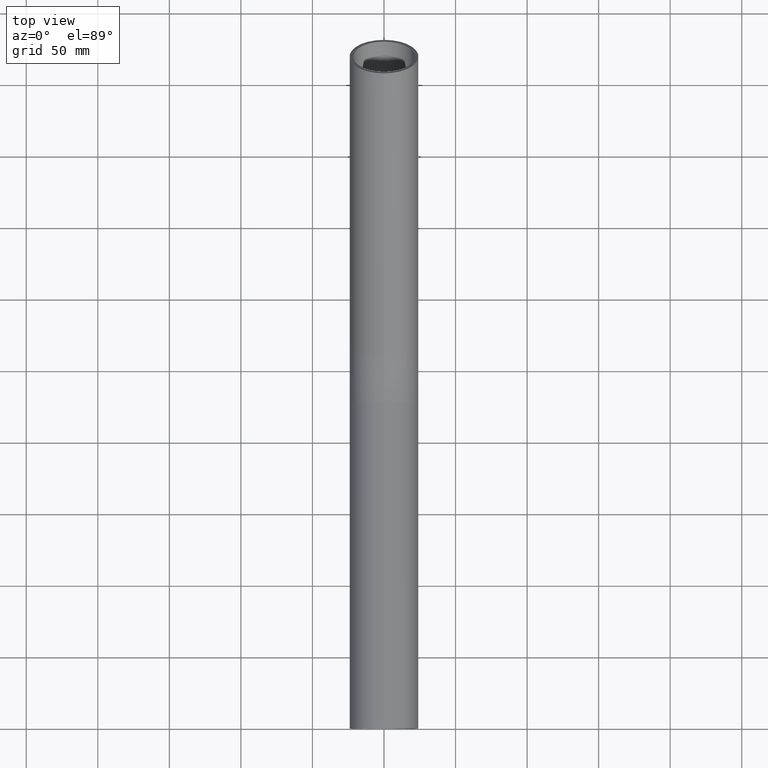
[diagram: clean part render]
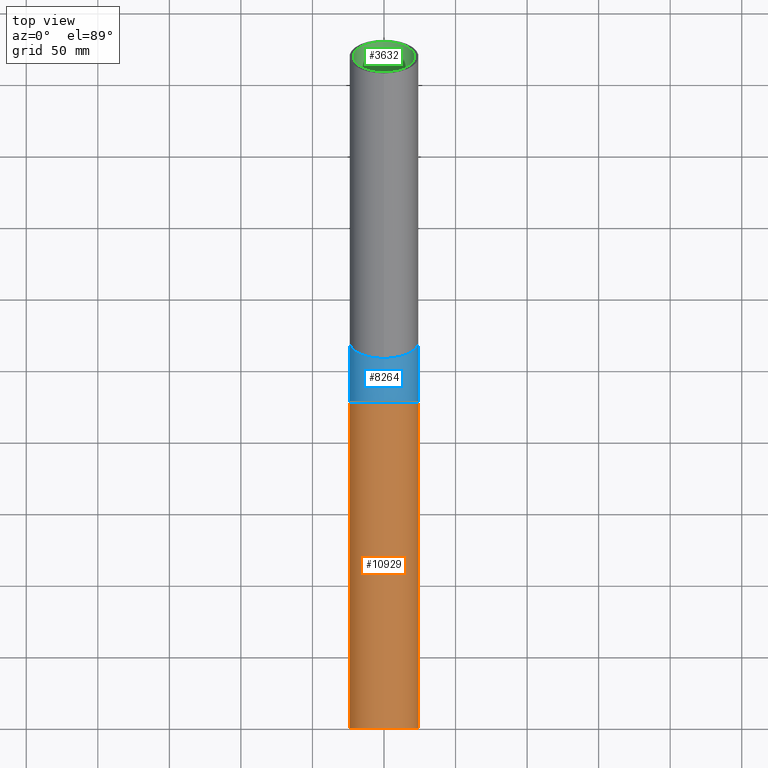
[diagram: same view with three faces highlighted in distinct colors, each labeled with its STEP entity id]
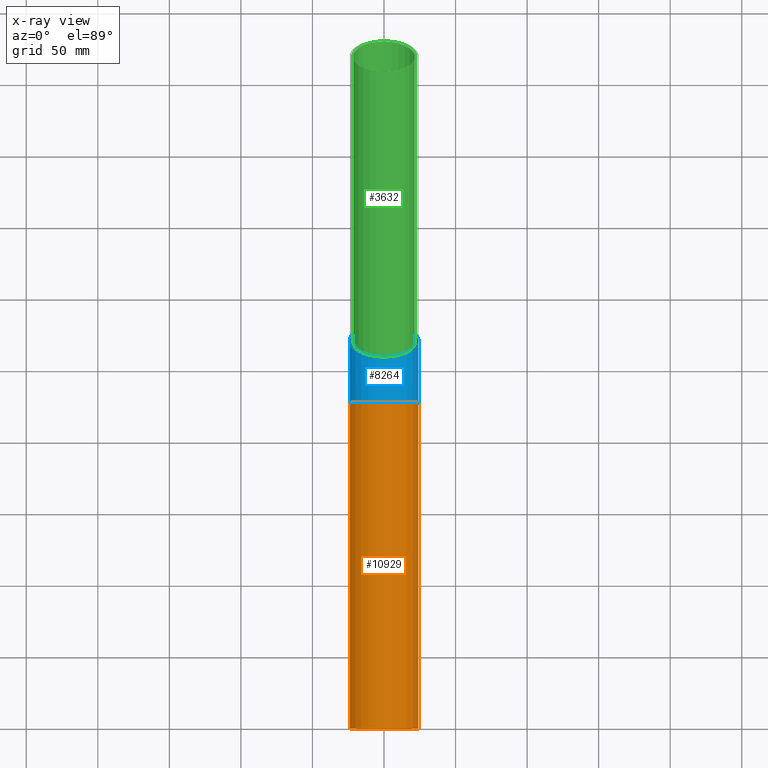
[diagram: x-ray of the same camera — body ghosted, the three highlighted faces saturated]
A machine part, top view with three faces highlighted in distinct colors.
The next image is the same camera in x-ray (body ghosted, the three faces saturated) — at least one of them is partly hidden behind the body in this view.
Their STEP definitions:

[orange] entity #10929 — the highlighted cylindrical surface (bore or boss wall) has radius 24.15 mm, axis along (-0, -1, 0).
#147 = DIRECTION ( 'NONE',  ( 0.000000000000000000, 0.000000000000000000, 1.000000000000000000 ) ) ;
#458 = CYLINDRICAL_SURFACE ( 'NONE', #8810, 24.15000000000000568 ) ;
#979 = EDGE_LOOP ( 'NONE', ( #8436 ) ) ;
#1240 = EDGE_CURVE ( 'NONE', #10034, #10034, #6648, .T. ) ;
#1300 = CARTESIAN_POINT ( 'NONE',  ( 0.000000000000000000, 0.000000000000000000, 24.15000000000000568 ) ) ;
#2030 = CARTESIAN_POINT ( 'NONE',  ( 0.000000000000000000, 227.7470520370725353, -7.464487448530533640E-29 ) ) ;
#2169 = DIRECTION ( 'NONE',  ( -0.000000000000000000, -1.000000000000000000, 3.277534168615920763E-31 ) ) ;
#2689 = ORIENTED_EDGE ( 'NONE', *, *, #5449, .T. ) ;
#5007 = CARTESIAN_POINT ( 'NONE',  ( 0.000000000000000000, 227.7470520370725353, -7.464487448530533640E-29 ) ) ;
#5414 = AXIS2_PLACEMENT_3D ( 'NONE', #13067, #11063, #6651 ) ;
#5449 = EDGE_CURVE ( 'NONE', #6864, #6864, #11997, .T. ) ;
#6648 = CIRCLE ( 'NONE', #11284, 24.15000000000000568 ) ;
#6651 = DIRECTION ( 'NONE',  ( 0.000000000000000000, 0.000000000000000000, 1.000000000000000000 ) ) ;
#6864 = VERTEX_POINT ( 'NONE', #1300 ) ;
#7415 = DIRECTION ( 'NONE',  ( 0.000000000000000000, 1.000000000000000000, 0.000000000000000000 ) ) ;
#8424 = FACE_OUTER_BOUND ( 'NONE', #13555, .T. ) ;
#8436 = ORIENTED_EDGE ( 'NONE', *, *, #1240, .F. ) ;
#8754 = DIRECTION ( 'NONE',  ( 0.000000000000000000, 0.000000000000000000, -1.000000000000000000 ) ) ;
#8810 = AXIS2_PLACEMENT_3D ( 'NONE', #2030, #2169, #8754 ) ;
#10034 = VERTEX_POINT ( 'NONE', #10822 ) ;
#10822 = CARTESIAN_POINT ( 'NONE',  ( 0.000000000000000000, 227.7470520370725353, 24.15000000000000568 ) ) ;
#10929 = ADVANCED_FACE ( 'NONE', ( #13759, #8424 ), #458, .T. ) ;
#11063 = DIRECTION ( 'NONE',  ( 0.000000000000000000, 1.000000000000000000, 0.000000000000000000 ) ) ;
#11284 = AXIS2_PLACEMENT_3D ( 'NONE', #5007, #7415, #147 ) ;
#11997 = CIRCLE ( 'NONE', #5414, 24.15000000000000568 ) ;
#13067 = CARTESIAN_POINT ( 'NONE',  ( 0.000000000000000000, 0.000000000000000000, 0.000000000000000000 ) ) ;
#13555 = EDGE_LOOP ( 'NONE', ( #2689 ) ) ;
#13759 = FACE_OUTER_BOUND ( 'NONE', #979, .T. ) ;

[blue] entity #8264 — the highlighted toroidal blend (fillet) surface has major radius 85 mm and minor (blend) radius 24.15 mm.
#147 = DIRECTION ( 'NONE',  ( 0.000000000000000000, 0.000000000000000000, 1.000000000000000000 ) ) ;
#1218 = CIRCLE ( 'NONE', #7102, 24.14999999999999858 ) ;
#1240 = EDGE_CURVE ( 'NONE', #10034, #10034, #6648, .T. ) ;
#1499 = AXIS2_PLACEMENT_3D ( 'NONE', #7204, #10326, #3950 ) ;
#2454 = ORIENTED_EDGE ( 'NONE', *, *, #1240, .T. ) ;
#2673 = FACE_OUTER_BOUND ( 'NONE', #11070, .T. ) ;
#3950 = DIRECTION ( 'NONE',  ( 0.000000000000000000, 0.000000000000000000, -1.000000000000000000 ) ) ;
#4176 = TOROIDAL_SURFACE ( 'NONE', #1499, 85.00000000000000000, 24.15000000000000568 ) ;
#4433 = CARTESIAN_POINT ( 'NONE',  ( 0.000000000000000000, 258.1720520370726035, 32.30235417971692868 ) ) ;
#4549 = DIRECTION ( 'NONE',  ( 0.000000000000000000, 0.8660254037844382635, 0.5000000000000006661 ) ) ;
#4592 = CARTESIAN_POINT ( 'NONE',  ( 0.000000000000000000, 270.2470520370725922, 11.38784067832274083 ) ) ;
#4704 = EDGE_CURVE ( 'NONE', #7030, #7030, #1218, .T. ) ;
#5007 = CARTESIAN_POINT ( 'NONE',  ( 0.000000000000000000, 227.7470520370725353, -7.464487448530533640E-29 ) ) ;
#5329 = ORIENTED_EDGE ( 'NONE', *, *, #4704, .F. ) ;
#6648 = CIRCLE ( 'NONE', #11284, 24.15000000000000568 ) ;
#7030 = VERTEX_POINT ( 'NONE', #4433 ) ;
#7102 = AXIS2_PLACEMENT_3D ( 'NONE', #4592, #4549, #7725 ) ;
#7204 = CARTESIAN_POINT ( 'NONE',  ( 0.000000000000000000, 227.7470520370725353, 85.00000000000000000 ) ) ;
#7415 = DIRECTION ( 'NONE',  ( 0.000000000000000000, 1.000000000000000000, 0.000000000000000000 ) ) ;
#7725 = DIRECTION ( 'NONE',  ( 0.000000000000000000, -0.5000000000000001110, 0.8660254037844383745 ) ) ;
#8264 = ADVANCED_FACE ( 'NONE', ( #2673, #9357 ), #4176, .T. ) ;
#9143 = EDGE_LOOP ( 'NONE', ( #5329 ) ) ;
#9357 = FACE_OUTER_BOUND ( 'NONE', #9143, .T. ) ;
#10034 = VERTEX_POINT ( 'NONE', #10822 ) ;
#10326 = DIRECTION ( 'NONE',  ( 1.000000000000000000, 0.000000000000000000, -0.000000000000000000 ) ) ;
#10822 = CARTESIAN_POINT ( 'NONE',  ( 0.000000000000000000, 227.7470520370725353, 24.15000000000000568 ) ) ;
#11070 = EDGE_LOOP ( 'NONE', ( #2454 ) ) ;
#11284 = AXIS2_PLACEMENT_3D ( 'NONE', #5007, #7415, #147 ) ;

[green] entity #3632 — the highlighted cylindrical surface (bore or boss wall) has radius 21.65 mm, axis along (0, 0.866, 0.5).
#1004 = ORIENTED_EDGE ( 'NONE', *, *, #7713, .T. ) ;
#1207 = DIRECTION ( 'NONE',  ( 0.000000000000000000, 0.8660254037844381525, 0.5000000000000008882 ) ) ;
#2028 = AXIS2_PLACEMENT_3D ( 'NONE', #3000, #13656, #13561 ) ;
#2564 = CIRCLE ( 'NONE', #5057, 21.65000000000001279 ) ;
#3000 = CARTESIAN_POINT ( 'NONE',  ( 0.000000000000000000, 467.4817847381938805, 125.2613666968592838 ) ) ;
#3422 = EDGE_LOOP ( 'NONE', ( #1004 ) ) ;
#3632 = ADVANCED_FACE ( 'NONE', ( #5236, #12712 ), #13200, .F. ) ;
#3846 = ORIENTED_EDGE ( 'NONE', *, *, #13490, .F. ) ;
#4373 = VERTEX_POINT ( 'NONE', #13371 ) ;
#5057 = AXIS2_PLACEMENT_3D ( 'NONE', #6355, #1207, #5340 ) ;
#5236 = FACE_OUTER_BOUND ( 'NONE', #6526, .T. ) ;
#5340 = DIRECTION ( 'NONE',  ( 0.000000000000000000, -0.5000000000000011102, 0.8660254037844380415 ) ) ;
#5788 = CARTESIAN_POINT ( 'NONE',  ( 0.000000000000000000, 270.2470520370725922, 11.38784067832274083 ) ) ;
#6355 = CARTESIAN_POINT ( 'NONE',  ( 0.000000000000000000, 270.2470520370725922, 11.38784067832275149 ) ) ;
#6526 = EDGE_LOOP ( 'NONE', ( #3846 ) ) ;
#7713 = EDGE_CURVE ( 'NONE', #10714, #10714, #8010, .T. ) ;
#8010 = CIRCLE ( 'NONE', #2028, 21.65000000000001279 ) ;
#10118 = DIRECTION ( 'NONE',  ( 0.000000000000000000, 0.8660254037844381525, 0.5000000000000008882 ) ) ;
#10208 = DIRECTION ( 'NONE',  ( 0.000000000000000000, -0.5000000000000011102, 0.8660254037844380415 ) ) ;
#10714 = VERTEX_POINT ( 'NONE', #12954 ) ;
#12351 = AXIS2_PLACEMENT_3D ( 'NONE', #5788, #10118, #10208 ) ;
#12712 = FACE_OUTER_BOUND ( 'NONE', #3422, .T. ) ;
#12954 = CARTESIAN_POINT ( 'NONE',  ( 0.000000000000000000, 456.6567847381938918, 144.0108166887923744 ) ) ;
#13200 = CYLINDRICAL_SURFACE ( 'NONE', #12351, 21.65000000000001279 ) ;
#13371 = CARTESIAN_POINT ( 'NONE',  ( 0.000000000000000000, 259.4220520370726035, 30.13729067025584385 ) ) ;
#13490 = EDGE_CURVE ( 'NONE', #4373, #4373, #2564, .T. ) ;
#13561 = DIRECTION ( 'NONE',  ( 0.000000000000000000, -0.5000000000000011102, 0.8660254037844380415 ) ) ;
#13656 = DIRECTION ( 'NONE',  ( 0.000000000000000000, 0.8660254037844382635, 0.5000000000000006661 ) ) ;